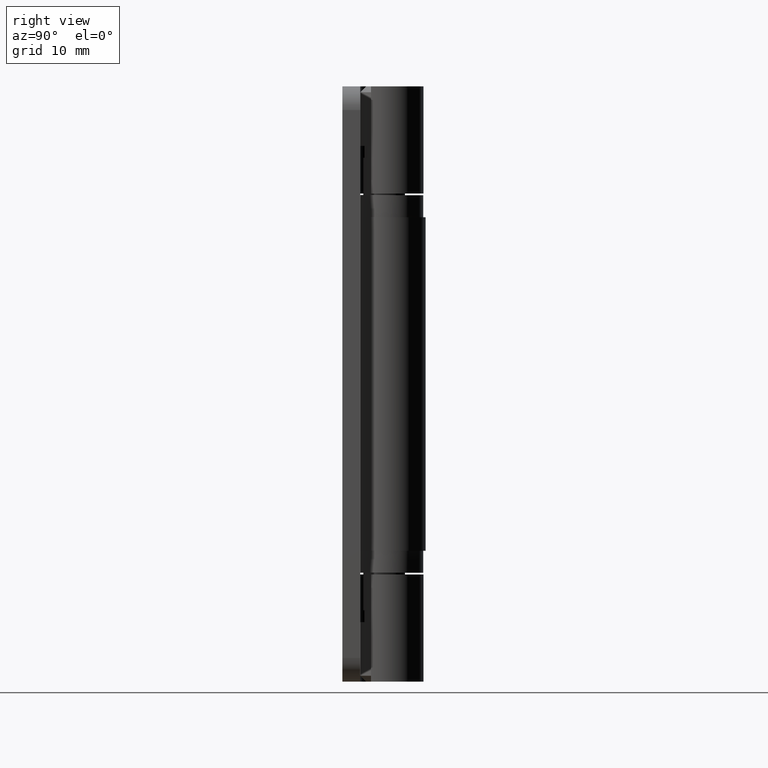
[diagram: clean part render]
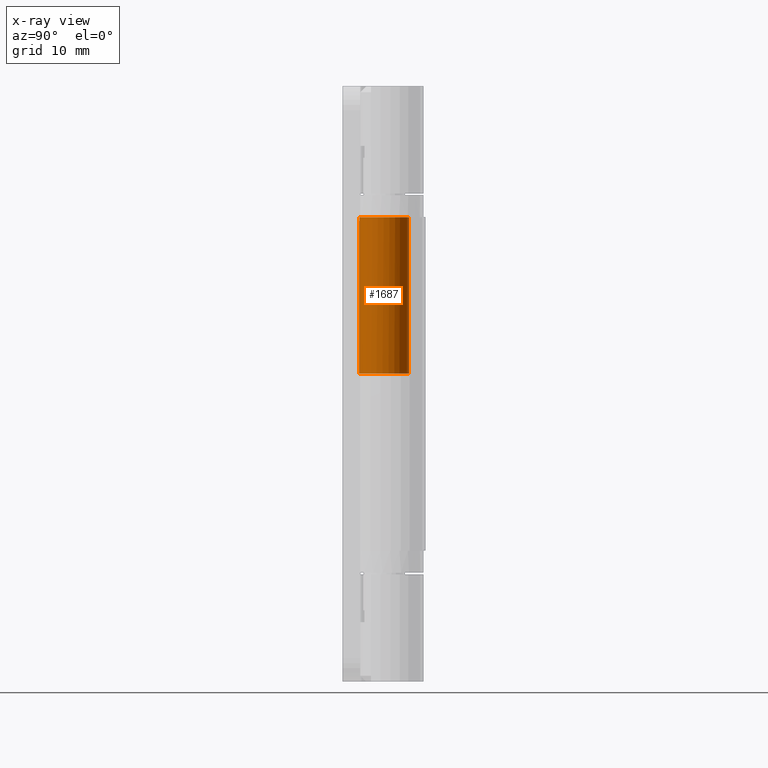
[diagram: x-ray — body ghosted, one internal face saturated and labeled with its STEP entity id]
A machine part, right view, then the same camera in x-ray: the body is ghosted and one INTERNAL B-rep face — a face not visible from any outside direction — is saturated and labeled: STEP entity #1687.
In plain terms, the highlighted cylindrical surface (bore or boss wall) has radius 2.1 mm, axis along (-0, 0, 1).
Its self-contained STEP definition (entity closure, byte-faithful):
#52=B_SPLINE_CURVE_WITH_KNOTS('',3,(#3030,#3031,#3032,#3033,#3034,#3035,
#3036,#3037,#3038,#3039,#3040,#3041,#3042),.UNSPECIFIED.,.F.,.F.,(4,3,3,
3,4),(0.,0.000397468045455272,0.000794936090910544,0.00119240413636582,
0.00158987218182109),.UNSPECIFIED.);
#53=B_SPLINE_CURVE_WITH_KNOTS('',3,(#3046,#3047,#3048,#3049,#3050,#3051,
#3052,#3053,#3054,#3055,#3056,#3057,#3058,#3059,#3060,#3061,#3062,#3063,
#3064,#3065,#3066,#3067,#3068,#3069,#3070,#3071,#3072,#3073,#3074,#3075,
#3076,#3077,#3078,#3079),.UNSPECIFIED.,.F.,.F.,(4,3,3,3,3,3,3,3,3,3,3,4),
(0.,0.000267306062556594,0.000356408083408792,0.000389266569592845,0.00044551010426099,
0.000712816166817584,0.000760638764388396,0.00089102020852198,0.000980122229374178,
0.00106922425022638,0.00110452168229754,0.00142563233363517),
 .UNSPECIFIED.);
#192=LINE('',#3028,#314);
#193=LINE('',#3080,#315);
#314=VECTOR('',#2324,8.15);
#315=VECTOR('',#2327,8.15);
#395=FACE_BOUND('',#606,.T.);
#482=FACE_OUTER_BOUND('',#605,.T.);
#605=EDGE_LOOP('',(#1485));
#606=EDGE_LOOP('',(#1486,#1487,#1488,#1489,#1490,#1491));
#713=CIRCLE('',#1864,2.1);
#714=CIRCLE('',#1865,2.1);
#715=CIRCLE('',#1866,2.1);
#863=VERTEX_POINT('',#3022);
#864=VERTEX_POINT('',#3024);
#865=VERTEX_POINT('',#3025);
#866=VERTEX_POINT('',#3027);
#867=VERTEX_POINT('',#3029);
#868=VERTEX_POINT('',#3043);
#869=VERTEX_POINT('',#3045);
#1077=EDGE_CURVE('',#863,#863,#713,.T.);
#1078=EDGE_CURVE('',#864,#865,#714,.T.);
#1079=EDGE_CURVE('',#865,#866,#192,.T.);
#1080=EDGE_CURVE('',#866,#867,#52,.T.);
#1081=EDGE_CURVE('',#867,#868,#715,.T.);
#1082=EDGE_CURVE('',#869,#868,#53,.T.);
#1083=EDGE_CURVE('',#869,#864,#193,.T.);
#1485=ORIENTED_EDGE('',*,*,#1077,.F.);
#1486=ORIENTED_EDGE('',*,*,#1078,.T.);
#1487=ORIENTED_EDGE('',*,*,#1079,.T.);
#1488=ORIENTED_EDGE('',*,*,#1080,.T.);
#1489=ORIENTED_EDGE('',*,*,#1081,.T.);
#1490=ORIENTED_EDGE('',*,*,#1082,.F.);
#1491=ORIENTED_EDGE('',*,*,#1083,.T.);
#1603=CYLINDRICAL_SURFACE('',#1863,2.1);
#1687=ADVANCED_FACE('',(#482,#395),#1603,.T.);
#1863=AXIS2_PLACEMENT_3D('',#3021,#2318,#2319);
#1864=AXIS2_PLACEMENT_3D('',#3023,#2320,#2321);
#1865=AXIS2_PLACEMENT_3D('',#3026,#2322,#2323);
#1866=AXIS2_PLACEMENT_3D('',#3044,#2325,#2326);
#2318=DIRECTION('center_axis',(0.,1.,0.));
#2319=DIRECTION('ref_axis',(0.,0.,1.));
#2320=DIRECTION('center_axis',(0.,-1.,0.));
#2321=DIRECTION('ref_axis',(0.,0.,-1.));
#2322=DIRECTION('center_axis',(0.,-1.,0.));
#2323=DIRECTION('ref_axis',(0.,0.,-1.));
#2324=DIRECTION('',(0.,-1.,0.));
#2325=DIRECTION('center_axis',(0.,-1.,0.));
#2326=DIRECTION('ref_axis',(-3.5527136788005E-15,0.,1.));
#2327=DIRECTION('',(0.,1.,0.));
#3021=CARTESIAN_POINT('Origin',(0.,-15.,0.));
#3022=CARTESIAN_POINT('',(0.,-15.,2.1));
#3023=CARTESIAN_POINT('Origin',(0.,-15.,0.));
#3024=CARTESIAN_POINT('',(2.06080282512027,-1.85,0.403846153846154));
#3025=CARTESIAN_POINT('',(1.23816886173798,-1.85,-1.69615384615385));
#3026=CARTESIAN_POINT('Origin',(0.,-1.85,0.));
#3027=CARTESIAN_POINT('',(1.23816886173798,-10.,-1.69615384615385));
#3028=CARTESIAN_POINT('',(1.23816886173798,-15.,-1.69615384615385));
#3029=CARTESIAN_POINT('',(1.90279691367065,-11.,-0.888461538461535));
#3030=CARTESIAN_POINT('Ctrl Pts',(1.23816886173798,-10.,-1.69615384615385));
#3031=CARTESIAN_POINT('Ctrl Pts',(1.23816886173798,-10.133870989246,-1.69615384615385));
#3032=CARTESIAN_POINT('Ctrl Pts',(1.26935826935634,-10.2643981971971,-1.67409485367697));
#3033=CARTESIAN_POINT('Ctrl Pts',(1.31775770208343,-10.3814356967069,-1.63508857209626));
#3034=CARTESIAN_POINT('Ctrl Pts',(1.36615713481052,-10.4984731962168,-1.59608229051556));
#3035=CARTESIAN_POINT('Ctrl Pts',(1.43013035286428,-10.6025399956802,-1.54085287441007));
#3036=CARTESIAN_POINT('Ctrl Pts',(1.49841993352882,-10.6922941470902,-1.47130476204065));
#3037=CARTESIAN_POINT('Ctrl Pts',(1.56670951419336,-10.7820482985002,-1.40175664967123));
#3038=CARTESIAN_POINT('Ctrl Pts',(1.63904601268831,-10.8570539154719,-1.31839895369453));
#3039=CARTESIAN_POINT('Ctrl Pts',(1.7093505727115,-10.9119351196042,-1.21988549445055));
#3040=CARTESIAN_POINT('Ctrl Pts',(1.77965513273469,-10.9668163237366,-1.12137203520657));
#3041=CARTESIAN_POINT('Ctrl Pts',(1.84606264233226,-11.,-1.00996797597034));
#3042=CARTESIAN_POINT('Ctrl Pts',(1.90279691367065,-11.,-0.888461538461534));
#3043=CARTESIAN_POINT('',(2.06080282512027,-11.,-0.403846153846154));
#3044=CARTESIAN_POINT('Origin',(0.,-11.,0.));
#3045=CARTESIAN_POINT('',(2.06080282512027,-10.,0.403846153846154));
#3046=CARTESIAN_POINT('Ctrl Pts',(2.06080282512027,-10.,0.403846153846154));
#3047=CARTESIAN_POINT('Ctrl Pts',(2.06080282671537,-10.0896876953586,0.403846145706439));
#3048=CARTESIAN_POINT('Ctrl Pts',(2.06288279087694,-10.1789762825836,0.393935625819446));
#3049=CARTESIAN_POINT('Ctrl Pts',(2.066348362295,-10.2659184979274,0.37465147843283));
#3050=CARTESIAN_POINT('Ctrl Pts',(2.06750355276769,-10.2948992363753,0.368223429303958));
#3051=CARTESIAN_POINT('Ctrl Pts',(2.06881647897491,-10.3236208350136,0.360733419312682));
#3052=CARTESIAN_POINT('Ctrl Pts',(2.07027063275467,-10.3519898885244,0.352136398834885));
#3053=CARTESIAN_POINT('Ctrl Pts',(2.0708068864942,-10.3624516507148,0.348966043371653));
#3054=CARTESIAN_POINT('Ctrl Pts',(2.07136255285101,-10.3728756671052,0.345643704687031));
#3055=CARTESIAN_POINT('Ctrl Pts',(2.07193621700957,-10.3832416413907,0.342170005837036));
#3056=CARTESIAN_POINT('Ctrl Pts',(2.07291815208134,-10.4009849735342,0.336224111050464));
#3057=CARTESIAN_POINT('Ctrl Pts',(2.07395084406361,-10.4186208625272,0.329820304750497));
#3058=CARTESIAN_POINT('Ctrl Pts',(2.07501707418359,-10.4360656486919,0.322979336599072));
#3059=CARTESIAN_POINT('Ctrl Pts',(2.08008449707643,-10.5189746822253,0.29046658164116));
#3060=CARTESIAN_POINT('Ctrl Pts',(2.08595983592459,-10.598044838756,0.24806872732504));
#3061=CARTESIAN_POINT('Ctrl Pts',(2.09084468517703,-10.6697538714499,0.195890176708901));
#3062=CARTESIAN_POINT('Ctrl Pts',(2.09171861290527,-10.6825830313272,0.186555132811736));
#3063=CARTESIAN_POINT('Ctrl Pts',(2.09256136030549,-10.6951995877032,0.176882844308078));
#3064=CARTESIAN_POINT('Ctrl Pts',(2.09335837520358,-10.7075548597441,0.166885337132586));
#3065=CARTESIAN_POINT('Ctrl Pts',(2.09553132185824,-10.7412397345352,0.13962856963169));
#3066=CARTESIAN_POINT('Ctrl Pts',(2.09734800726319,-10.7731777162862,0.109778226864103));
#3067=CARTESIAN_POINT('Ctrl Pts',(2.09852309027093,-10.8025994384926,0.0777977622894364));
#3068=CARTESIAN_POINT('Ctrl Pts',(2.09932613606747,-10.8227060949495,0.0559424742127419));
#3069=CARTESIAN_POINT('Ctrl Pts',(2.09983191631905,-10.8416411898736,0.0330459399534435));
#3070=CARTESIAN_POINT('Ctrl Pts',(2.09994315008625,-10.8592270151334,0.00921153933954661));
#3071=CARTESIAN_POINT('Ctrl Pts',(2.10005438385345,-10.8768128403933,-0.0146228612743503));
#3072=CARTESIAN_POINT('Ctrl Pts',(2.0997716133361,-10.8930512667394,-0.0393959591181049));
#3073=CARTESIAN_POINT('Ctrl Pts',(2.09898653841883,-10.9077278529501,-0.0650320735722534));
#3074=CARTESIAN_POINT('Ctrl Pts',(2.09867553392872,-10.9135419276462,-0.0751877243628796));
#3075=CARTESIAN_POINT('Ctrl Pts',(2.09828533741101,-10.9191181277299,-0.0854846593053966));
#3076=CARTESIAN_POINT('Ctrl Pts',(2.0978085389159,-10.9244391071853,-0.0959131782843241));
#3077=CARTESIAN_POINT('Ctrl Pts',(2.09347096911732,-10.9728455514626,-0.190784343842722));
#3078=CARTESIAN_POINT('Ctrl Pts',(2.08164320176367,-10.9999999870716,-0.297498955403719));
#3079=CARTESIAN_POINT('Ctrl Pts',(2.06080282512027,-11.,-0.403846153846154));
#3080=CARTESIAN_POINT('',(2.06080282512027,-15.,0.403846153846154));